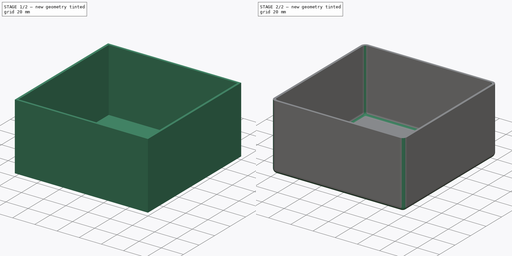
[diagram: build sequence overview — one tinted view per stage of 2, left to right]
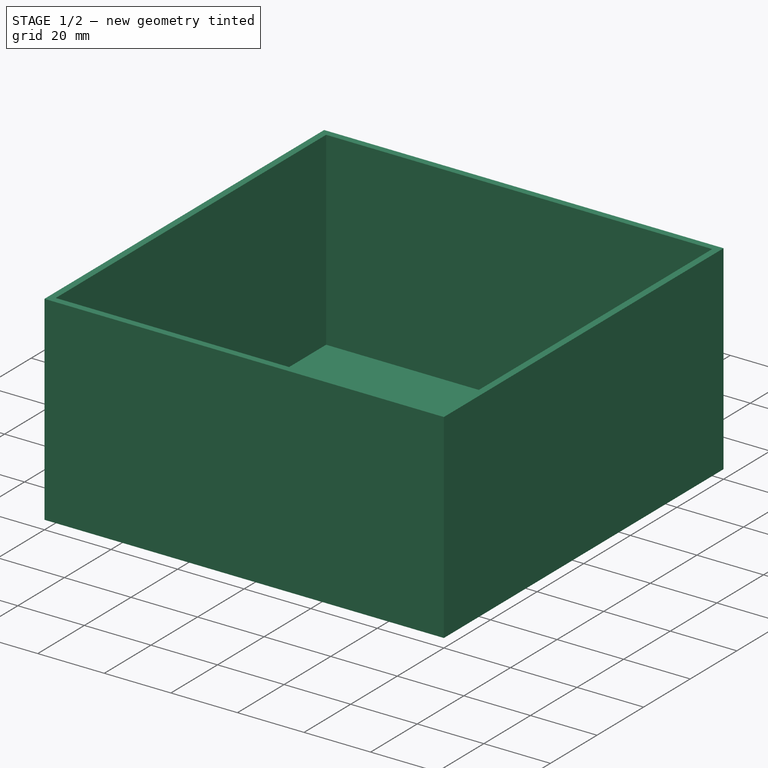
[diagram: stage 1 of 2 — iso view after this stage's code; geometry added in this stage tinted green]
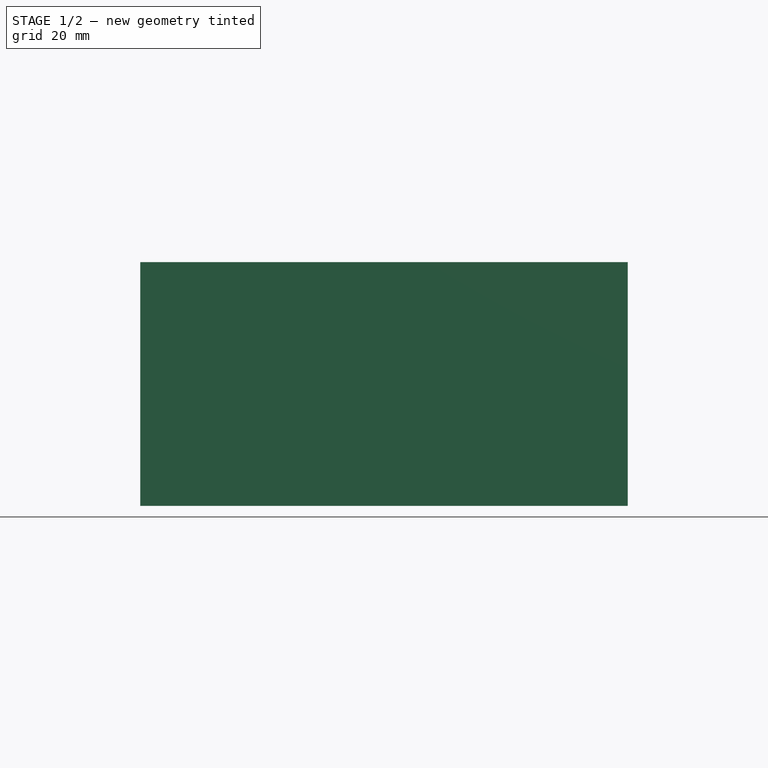
[diagram: stage 1 of 2 — front view after this stage's code; geometry added in this stage tinted green]
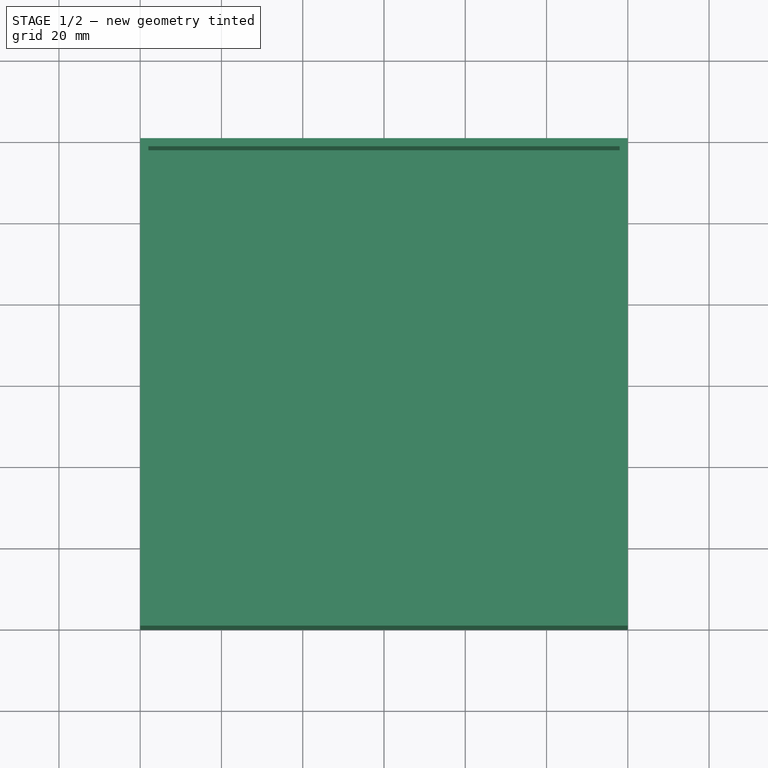
[diagram: stage 1 of 2 — top view after this stage's code; geometry added in this stage tinted green]
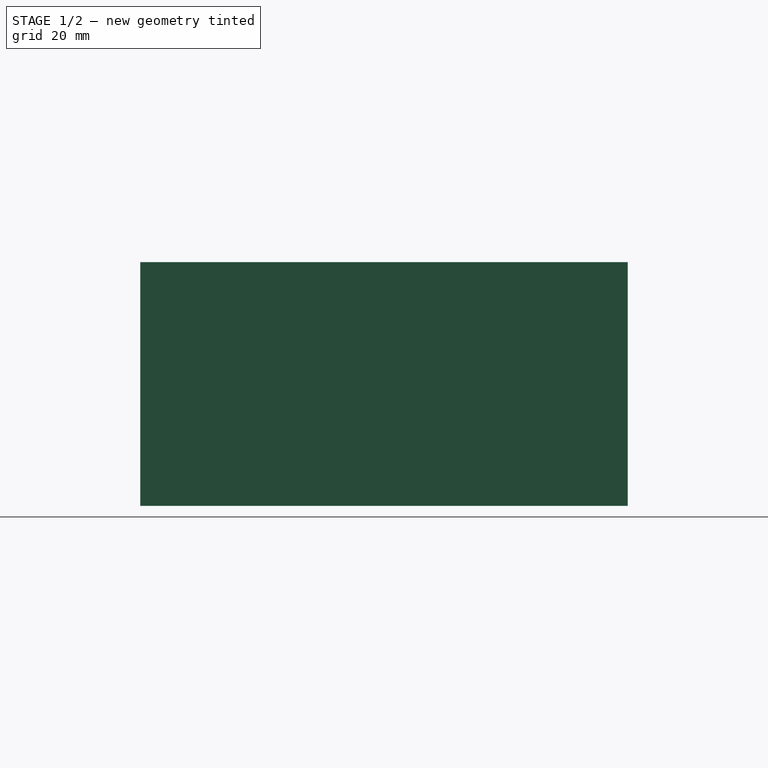
[diagram: stage 1 of 2 — right view after this stage's code; geometry added in this stage tinted green]
FCSTD DOCUMENT  (FreeCAD 0.18.3R)
Label: Box
License: All rights reserved
LicenseURL: http://en.wikipedia.org/wiki/All_rights_reserved
objects: Sketcher::SketchObject×2, PartDesign::Fillet×2, App::Part×1, Spreadsheet::Sheet×1, Part::Extrusion×1, PartDesign::Pocket×1, PartDesign::Body×1
note: 8 computed .brp shape members not serialized (recipe doc carries the construction recipe); baked Part::Feature solids carry a one-line shape summary decoded from their .brp

FEATURE [App::Part] Part
  Origin = -> Origin
FEATURE [Sketcher::SketchObject] Sketch
  MapMode = 5
  Support = -> [XY_Plane001]
  expr: Constraints[9] = vars.y
  expr: Constraints[10] = vars.x
  sketch-geometry (4):
    g0: LineSegment StartX=0 StartY=120 StartZ=0 EndX=120 EndY=120 EndZ=0
    g1: LineSegment StartX=120 StartY=120 StartZ=0 EndX=120 EndY=0 EndZ=0
    g2: LineSegment StartX=120 StartY=0 StartZ=0 EndX=0 EndY=0 EndZ=0
    g3: LineSegment StartX=0 StartY=0 StartZ=0 EndX=0 EndY=120 EndZ=0
  constraints (11):
    c: Coincident(g0,g1)
    c: Coincident(g1,g2)
    c: Coincident(g2,g3)
    c: Coincident(g3,g0)
    c: Horizontal(g0)
    c: Horizontal(g2)
    c: Vertical(g1)
    c: Vertical(g3)
    c: Coincident(g2,g-1)
    c: DistanceY(g3,g3) = 120
    c: DistanceX(g2,g2) = 120
FEATURE [Spreadsheet::Sheet] Spreadsheet  label="vars"
  cells = A1=X; B1(x)==120mm; C1=Box width; A2=Y; B2(y)==120mm; C2=Box depth; A3=Z; B3(z)==60mm; C3=Box height; A4=W; B4(w)==2mm; C4=Wall thickness; A5=F; B5(f)==3mm; C5=Floor thickness; A6=r; B6(r)=4; C6=Radius
FEATURE [Part::Extrusion] Extrude
  Base = -> Sketch
  Dir = (0,0,1)
  DirMode = 2
  FaceMakerClass = Part::FaceMakerBullseye
  LengthFwd = 60
  LengthRev = 0
  Solid = true
  Symmetric = false
  expr: LengthFwd = vars.z
FEATURE [Sketcher::SketchObject] Sketch001
  MapMode = 5
  Placement = pos=(0,0,60) rot=(0,0,1;0rad)
  Support = -> [Extrude]
  expr: Constraints[22] = vars.w
  expr: Constraints[21] = vars.w
  expr: Constraints[20] = vars.w
  expr: Constraints[19] = vars.y
  expr: Constraints[18] = vars.x
  expr: Constraints[8] = vars.w
  sketch-geometry (8):
    g0: LineSegment StartX=2 StartY=2 StartZ=0 EndX=118 EndY=2 EndZ=0
    g1: LineSegment StartX=118 StartY=2 StartZ=0 EndX=118 EndY=118 EndZ=0
    g2: LineSegment StartX=118 StartY=118 StartZ=0 EndX=2 EndY=118 EndZ=0
    g3: LineSegment StartX=2 StartY=118 StartZ=0 EndX=2 EndY=2 EndZ=0
    g4: LineSegment [constr] StartX=0 StartY=0 StartZ=0 EndX=120 EndY=0 EndZ=0
    g5: LineSegment [constr] StartX=120 StartY=0 StartZ=0 EndX=120 EndY=120 EndZ=0
    g6: LineSegment [constr] StartX=120 StartY=120 StartZ=0 EndX=0 EndY=120 EndZ=0
    g7: LineSegment [constr] StartX=0 StartY=120 StartZ=0 EndX=0 EndY=0 EndZ=0
  constraints (23):
    c: Coincident(g0,g1)
    c: Coincident(g1,g2)
    c: Coincident(g2,g3)
    c: Coincident(g3,g0)
    c: Horizontal(g0)
    c: Horizontal(g2)
    c: Vertical(g1)
    c: Vertical(g3)
    c: DistanceY(g-1,g0) = 2
    c: Coincident(g4,g5)
    c: Coincident(g5,g6)
    c: Coincident(g6,g7)
    c: Coincident(g7,g4)
    c: Horizontal(g4)
    c: Horizontal(g6)
    c: Vertical(g5)
    c: Vertical(g7)
    c: Coincident(g4,g-1)
    c: DistanceX(g4,g4) = 120
    c: DistanceY(g7,g7) = 120
    c: DistanceY(g2,g6) = 2
    c: DistanceX(g0,g4) = 2
    c: DistanceX(g6,g2) = 2
FEATURE [PartDesign::Pocket] Pocket
  Length = 57
  Length2 = 100
  Profile = -> Sketch001
  Type = 0
  expr: Length = vars.z - vars.f
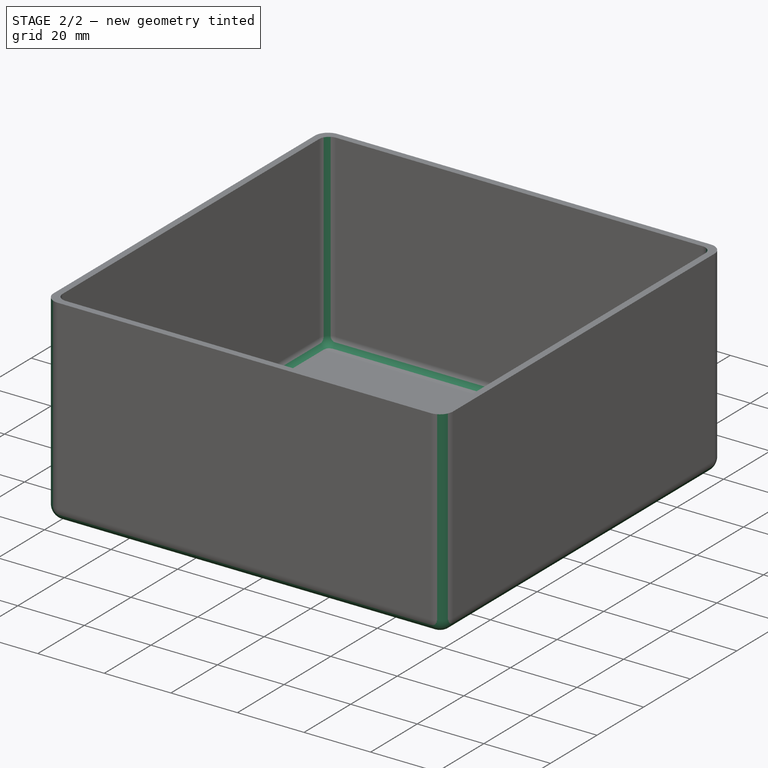
[diagram: stage 2 of 2 — iso view after this stage's code; geometry added in this stage tinted green]
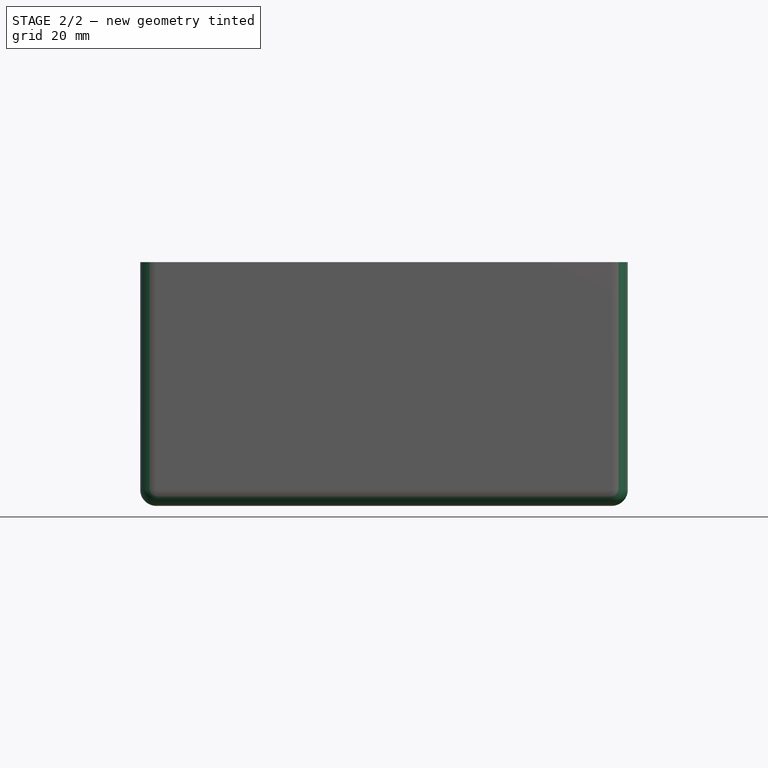
[diagram: stage 2 of 2 — front view after this stage's code; geometry added in this stage tinted green]
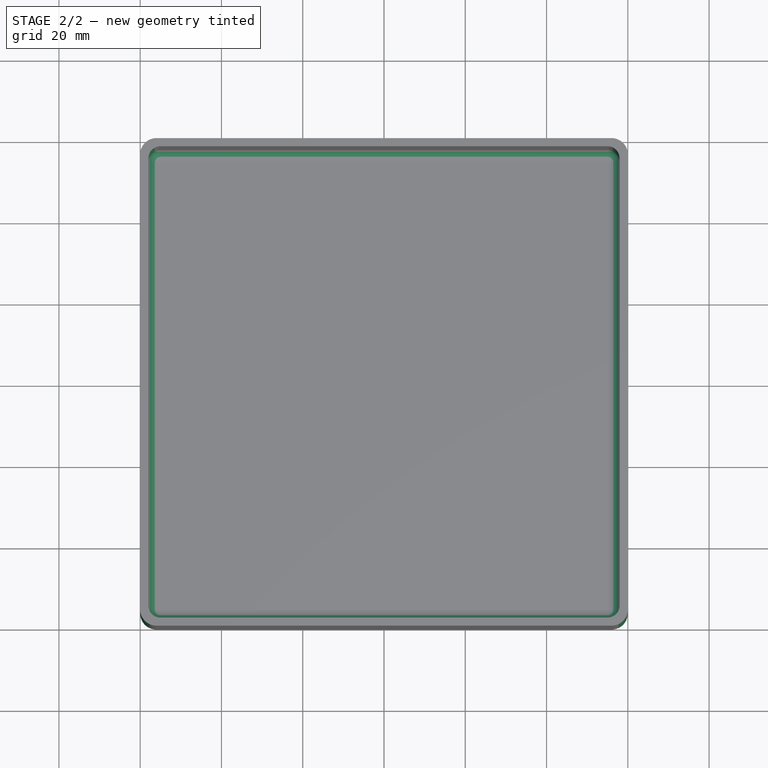
[diagram: stage 2 of 2 — top view after this stage's code; geometry added in this stage tinted green]
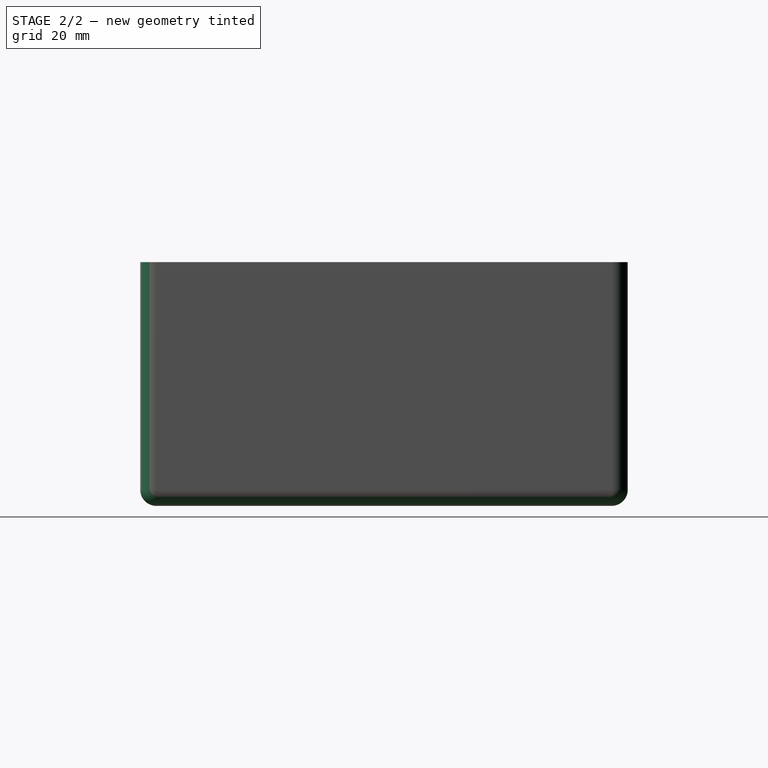
[diagram: stage 2 of 2 — right view after this stage's code; geometry added in this stage tinted green]
FEATURE [PartDesign::Fillet] Fillet
  Base = -> Pocket [Edge1,Edge3,Edge6,Edge2,Edge5,Edge11,Edge9,Edge8]
  BaseFeature = -> Pocket
  Radius = 4
  expr: Radius = vars.r
FEATURE [PartDesign::Fillet] Fillet001
  Base = -> Fillet [Edge37,Edge38,Edge39,Edge35,Edge36,Edge34,Edge33,Edge32]
  BaseFeature = -> Fillet
  Radius = 3
  expr: Radius = vars.r - vars.w / 2mm
FEATURE [PartDesign::Body] Body
  Group = -> [Sketch,Sketch001,Pocket,Fillet,Fillet001]
  Origin = -> Origin001
  Tip = -> Fillet001
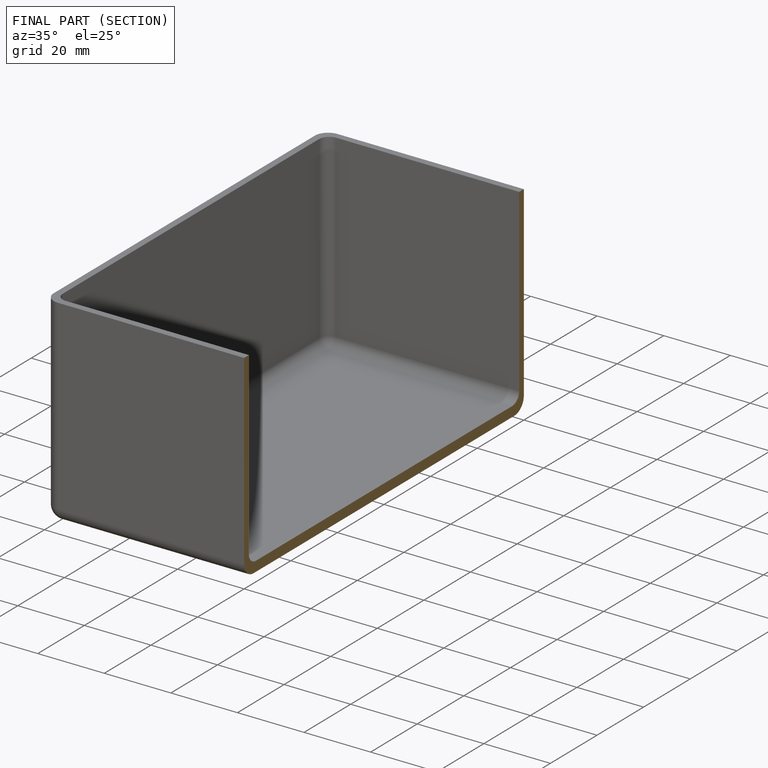
[diagram: finished part — half-section view (interior)]
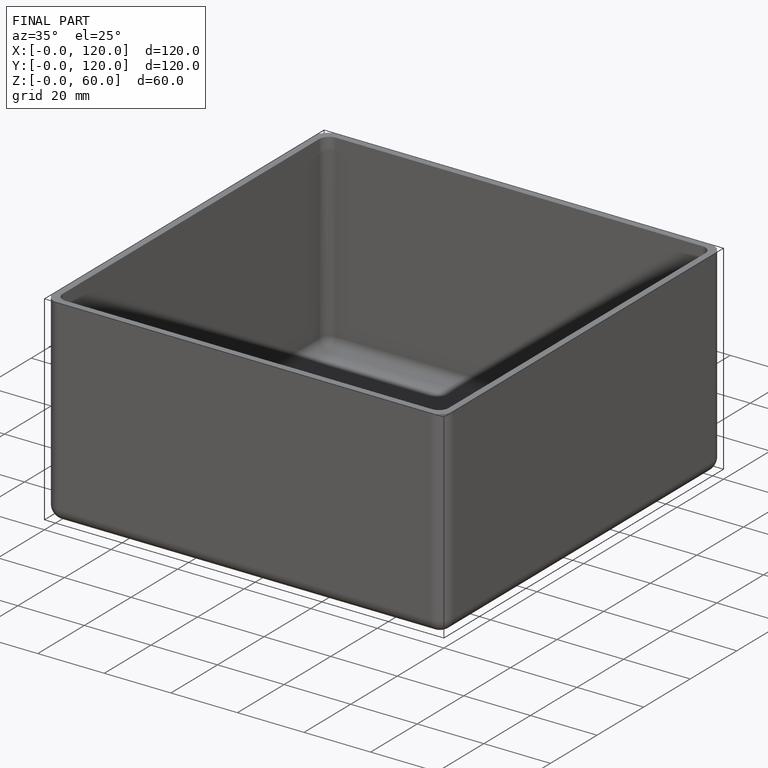
[diagram: finished part — iso view with bounding-box wireframe]
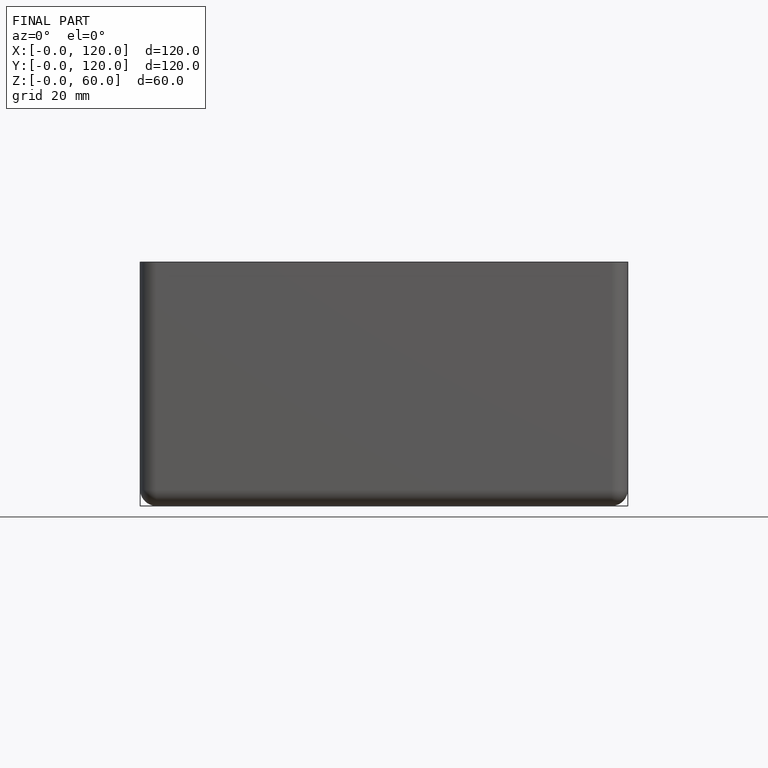
[diagram: finished part — front view with bounding-box wireframe]
